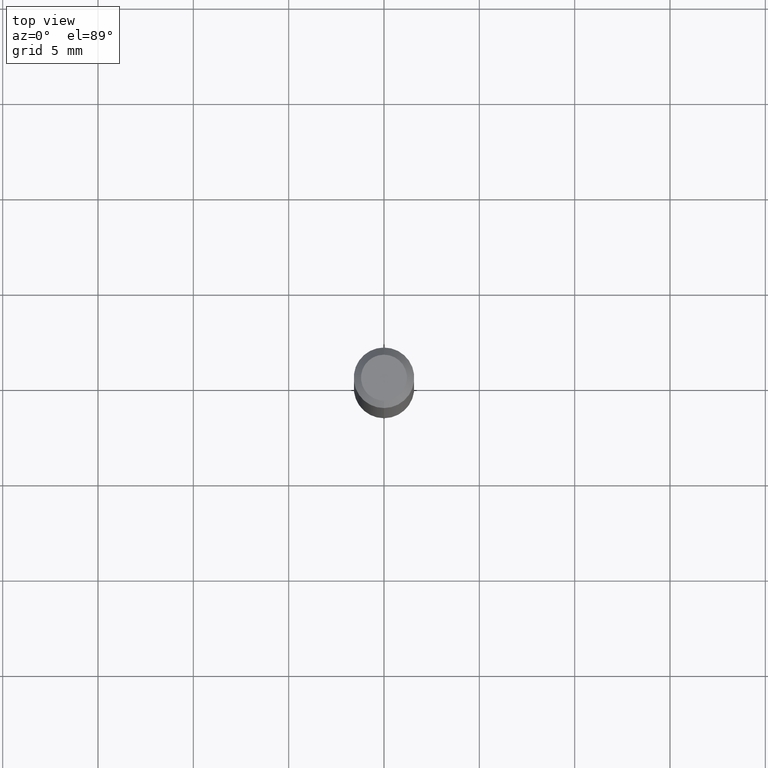
[diagram: clean part render]
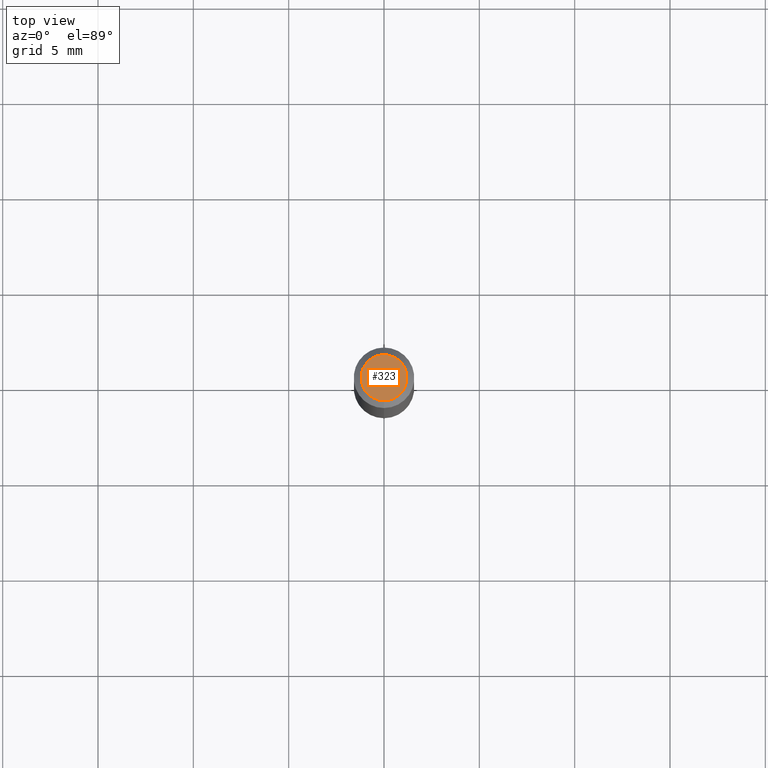
[diagram: same view with one face highlighted and labeled with its STEP entity id]
A machine part, top view. The second image highlights one B-rep face of the part: STEP entity #323.
In plain terms, the highlighted planar face has unit normal (0, -0, -1).
Its self-contained STEP definition (entity closure, byte-faithful):
#7 = CARTESIAN_POINT ( 'NONE',  ( 3.316907271900976096E-16, 0.04749999999999999362, -1.702757421449040803E-16 ) ) ;
#45 = CARTESIAN_POINT ( 'NONE',  ( 2.166650827786679282E-46, -3.093419456611862334E-32, -8.859882083952835941E-18 ) ) ;
#55 = DIRECTION ( 'NONE',  ( -6.982962677686266711E-15, -1.000000000000000000, 3.491490549535320065E-15 ) ) ;
#60 = ORIENTED_EDGE ( 'NONE', *, *, #401, .T. ) ;
#89 = DIRECTION ( 'NONE',  ( 2.445462374393167681E-29, -3.491490549535319671E-15, -1.000000000000000000 ) ) ;
#105 = AXIS2_PLACEMENT_3D ( 'NONE', #45, #210, #55 ) ;
#120 = ORIENTED_EDGE ( 'NONE', *, *, #417, .T. ) ;
#122 = CARTESIAN_POINT ( 'NONE',  ( 3.840629472727447874E-16, 0.04749999999999999362, -1.747056831868805136E-16 ) ) ;
#129 = DIRECTION ( 'NONE',  ( 6.982962677686265922E-15, 1.000000000000000000, -3.491490549535319671E-15 ) ) ;
#171 = CIRCLE ( 'NONE', #105, 0.04749999999999999362 ) ;
#206 = CARTESIAN_POINT ( 'NONE',  ( -3.773273898774340269E-16, -0.04749999999999999362, 1.569859190189748294E-16 ) ) ;
#210 = DIRECTION ( 'NONE',  ( -2.445462374393167961E-29, 3.491490549535319671E-15, 1.000000000000000000 ) ) ;
#248 = DIRECTION ( 'NONE',  ( -6.982962677686266711E-15, -1.000000000000000000, 3.491490549535320065E-15 ) ) ;
#250 = PLANE ( 'NONE',  #295 ) ;
#295 = AXIS2_PLACEMENT_3D ( 'NONE', #7, #89, #129 ) ;
#307 = AXIS2_PLACEMENT_3D ( 'NONE', #369, #436, #248 ) ;
#308 = EDGE_LOOP ( 'NONE', ( #60, #120 ) ) ;
#323 = ADVANCED_FACE ( 'NONE', ( #371 ), #250, .F. ) ;
#369 = CARTESIAN_POINT ( 'NONE',  ( 2.166650827786679282E-46, -3.093419456611862334E-32, -8.859882083952835941E-18 ) ) ;
#371 = FACE_OUTER_BOUND ( 'NONE', #308, .T. ) ;
#389 = VERTEX_POINT ( 'NONE', #122 ) ;
#398 = VERTEX_POINT ( 'NONE', #206 ) ;
#401 = EDGE_CURVE ( 'NONE', #389, #398, #171, .T. ) ;
#416 = CIRCLE ( 'NONE', #307, 0.04749999999999999362 ) ;
#417 = EDGE_CURVE ( 'NONE', #398, #389, #416, .T. ) ;
#436 = DIRECTION ( 'NONE',  ( -2.445462374393167961E-29, 3.491490549535319671E-15, 1.000000000000000000 ) ) ;